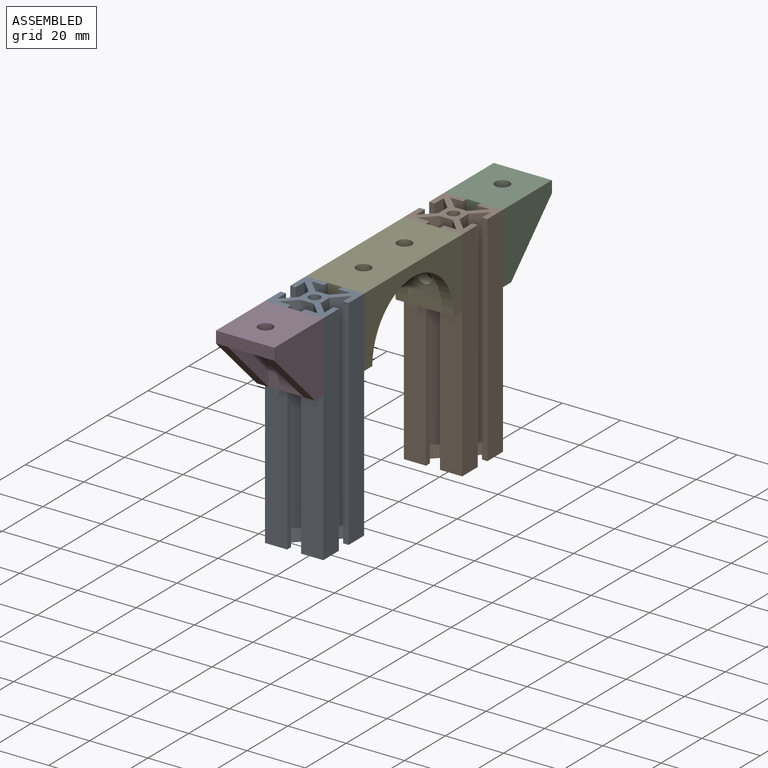
[diagram: assembled view]
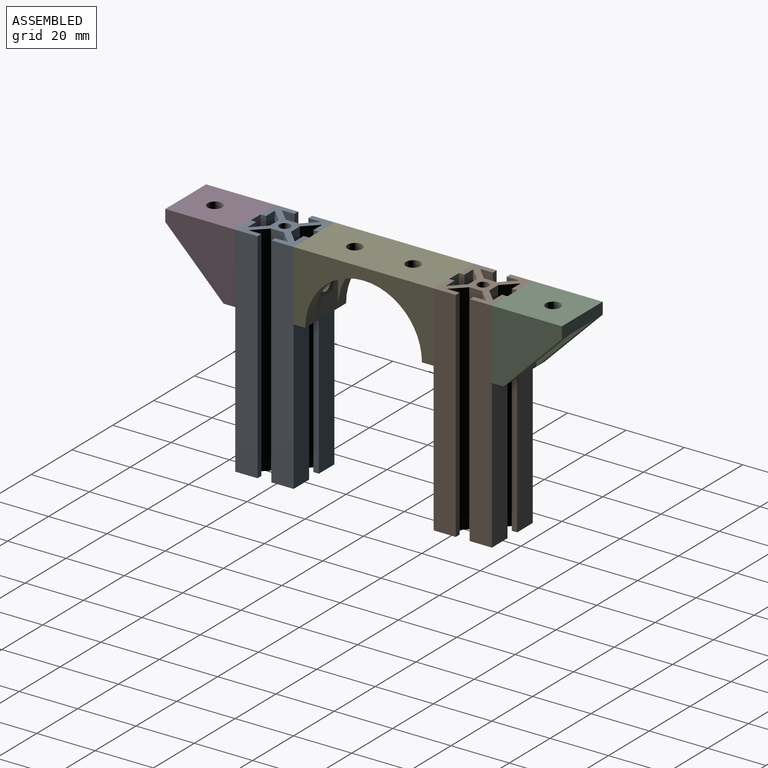
[diagram: assembled view, second angle]
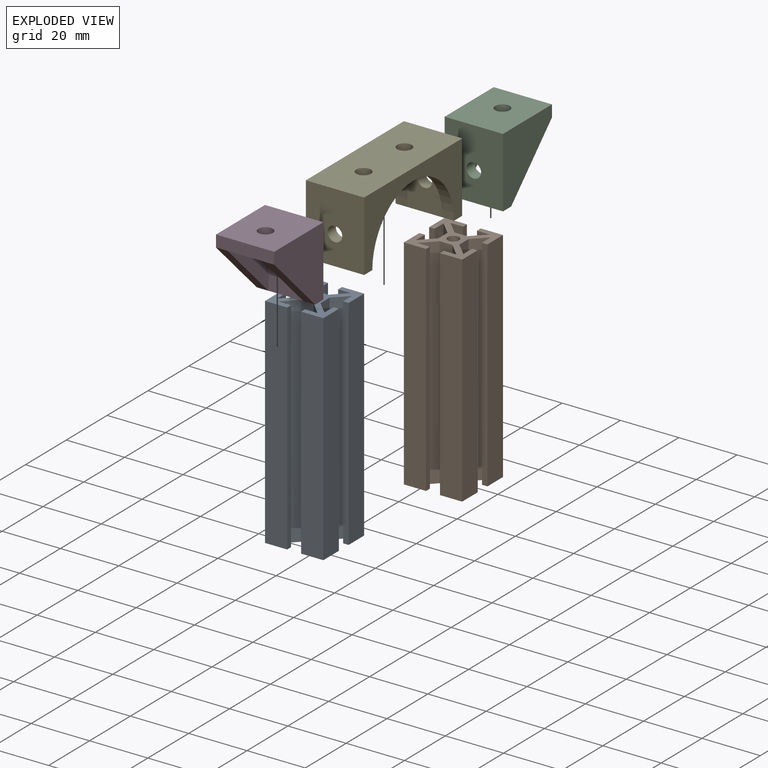
[diagram: exploded view]
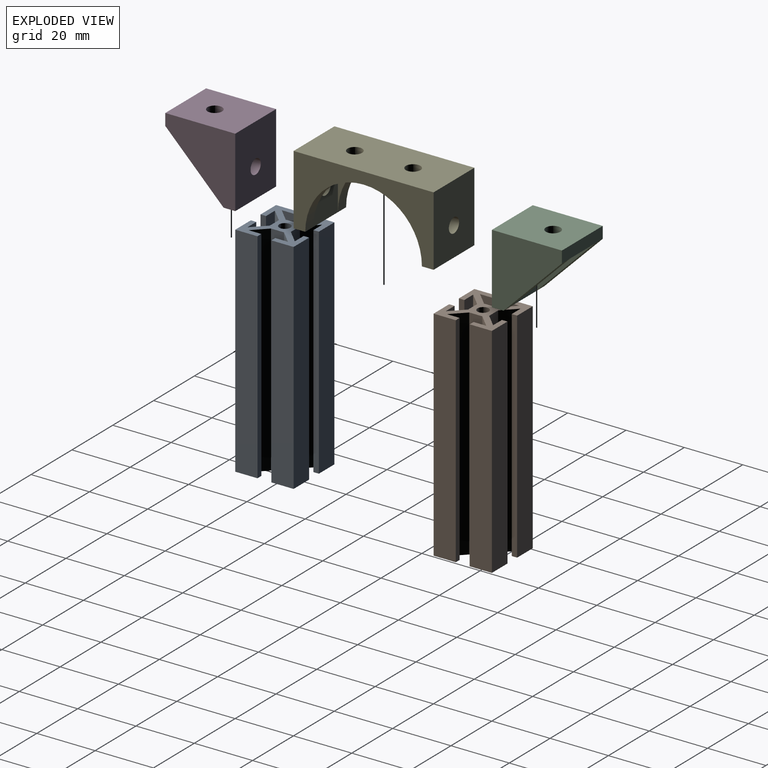
[diagram: exploded view, second angle]
ASSEMBLY  parts=5 mates=4
PART A: 39 faces, bbox 20x20x75 mm
  f0: plane 75x7.62mm, normal (0,1,0), area 571.6mm2, adj f1,f35,f37,f38
  f1: plane 75x7.62mm, normal (-1,0,0), area 571.2mm2, adj f0,f2,f37,f38
  f2: plane 75x1.89mm, normal (0,-1,0), area 141.8mm2, adj f1,f3,f37,f38
  f3: plane 75x4.35mm, normal (1,0,0), area 326.5mm2, adj f2,f4,f37,f38
  f4: plane 75x4.5mm, normal (-0.71,-0.71,0), area 477.3mm2, adj f3,f5,f37,f38
  f5: plane 75x4.48mm, normal (-1,0,0), area 335.7mm2, adj f4,f6,f37,f38
  f6: plane 75x4.5mm, normal (-0.71,0.71,0), area 477.3mm2, adj f5,f7,f37,f38
  f7: plane 75x4.35mm, normal (1,0,0), area 326.5mm2, adj f6,f8,f37,f38
  f8: plane 75x1.89mm, normal (0,1,0), area 141.8mm2, adj f7,f9,f37,f38
  f9: plane 75x7.62mm, normal (-1,0,0), area 571.2mm2, adj f8,f10,f37,f38
  f10: plane 75x7.62mm, normal (0,-1,0), area 571.2mm2, adj f9,f11,f37,f38
  f11: plane 75x1.87mm, normal (1,0,0), area 140.4mm2, adj f10,f12,f37,f38
  f12: plane 75x4.34mm, normal (0,1,0), area 325.6mm2, adj f11,f13,f37,f38
  f13: plane 75x4.52mm, normal (0.71,-0.71,0), area 479.2mm2, adj f12,f14,f37,f38
  f14: plane 75x4.41mm, normal (0,-1,0), area 330.6mm2, adj f13,f15,f37,f38
  f15: plane 75x4.52mm, normal (-0.71,-0.71,0), area 479.2mm2, adj f14,f16,f37,f38
  f16: plane 75x4.34mm, normal (0,1,0), area 325.6mm2, adj f15,f17,f37,f38
  f17: plane 75x1.87mm, normal (-1,0,0), area 140.4mm2, adj f16,f18,f37,f38
  f18: plane 75x7.62mm, normal (0,-1,0), area 571.6mm2, adj f17,f19,f37,f38
  f19: plane 75x7.62mm, normal (1,0,0), area 571.2mm2, adj f18,f20,f37,f38
  f20: plane 75x1.89mm, normal (0,1,0), area 141.8mm2, adj f19,f21,f37,f38
  f21: plane 75x4.35mm, normal (-1,0,0), area 326.5mm2, adj f20,f22,f37,f38
  f22: plane 75x4.5mm, normal (0.71,0.71,0), area 477.3mm2, adj f21,f23,f37,f38
  f23: plane 75x4.48mm, normal (1,0,0), area 335.7mm2, adj f22,f24,f37,f38
  f24: plane 75x4.5mm, normal (0.71,-0.71,0), area 477.3mm2, adj f23,f25,f37,f38
  f25: plane 75x4.35mm, normal (-1,0,0), area 326.5mm2, adj f24,f26,f37,f38
  f26: plane 75x1.89mm, normal (0,-1,0), area 141.8mm2, adj f25,f27,f37,f38
  f27: plane 75x7.62mm, normal (1,0,0), area 571.2mm2, adj f26,f28,f37,f38
  f28: plane 75x7.62mm, normal (0,1,0), area 571.2mm2, adj f27,f29,f37,f38
  f29: plane 75x1.87mm, normal (-1,0,0), area 140.4mm2, adj f28,f30,f37,f38
  f30: plane 75x4.34mm, normal (0,-1,0), area 325.6mm2, adj f29,f31,f37,f38
  f31: plane 75x4.52mm, normal (-0.71,0.71,0), area 479.2mm2, adj f30,f32,f37,f38
  f32: plane 75x4.41mm, normal (0,1,0), area 330.6mm2, adj f31,f33,f37,f38
  f33: plane 75x4.52mm, normal (0.71,0.71,0), area 479.2mm2, adj f32,f34,f37,f38
  f34: plane 75x4.34mm, normal (0,-1,0), area 325.6mm2, adj f33,f35,f37,f38
  f35: plane 75x1.87mm, normal (1,0,0), area 140.4mm2, adj f0,f34,f37,f38
  f36: cylinder r=1.93mm len=75mm, axis (0,0,-1), area 909.7mm2, adj f37,f38
  f37: plane 20x20mm, normal (0,0,1), area 191mm2, adj f0,f1,f2,f3,f4,f5,f6,f7
  f38: plane 20x20mm, normal (0,0,-1), area 191mm2, adj f0,f1,f2,f3,f4,f5,f6,f7
PART B: same geometry as A
PART C: 14 faces, bbox 20x24x24 mm
  f0: plane 20x20mm, normal (1,0,0), area 200mm2, adj f3,f5,f8
  f1: plane 20x20mm, normal (-1,0,0), area 200mm2, adj f2,f5,f8
  f2: plane 20x20mm, normal (0,-0.71,-0.71), area 113.1mm2, adj f1,f6,f9,f12
  f3: plane 20x20mm, normal (0,-0.71,-0.71), area 113.1mm2, adj f0,f6,f7,f12
  f4: cylinder r=2.5mm len=5mm, axis (0,-1,0), area 62.8mm2, adj f5,f13
  f5: plane 20x12mm, normal (0,-1,0), area 220.4mm2, adj f0,f1,f4,f8,f12
  f6: plane 20x4mm, normal (0,-1,0), area 80mm2, adj f2,f3,f7,f8,f9,f11
  f7: plane 24x24mm, normal (-1,0,0), area 376mm2, adj f3,f6,f11,f12,f13
  f8: plane 20x12mm, normal (0,0,-1), area 220.4mm2, adj f0,f1,f5,f6,f10
  f9: plane 24x24mm, normal (1,0,0), area 376mm2, adj f2,f6,f11,f12,f13
  f10: cylinder r=2.5mm len=5mm, axis (0,0,-1), area 62.8mm2, adj f8,f11
  f11: plane 24x20mm, normal (0,0,1), area 460.4mm2, adj f6,f7,f9,f10,f13
  f12: plane 20x4mm, normal (0,0,-1), area 80mm2, adj f2,f3,f5,f7,f9,f13
  f13: plane 24x20mm, normal (0,1,0), area 460.4mm2, adj f4,f7,f9,f11,f12
PART D: same geometry as C
PART E: 20 faces, bbox 20x48x24 mm
  f0: plane 20x4mm, normal (0,0,-1), area 80mm2, adj f3,f6,f14,f17,f18,f19
  f1: plane 20x20mm, normal (1,0,0), area 85.8mm2, adj f4,f17,f19
  f2: plane 20x20mm, normal (-1,0,0), area 85.8mm2, adj f4,f17,f18
  f3: plane 48x24mm, normal (-1,0,0), area 523.7mm2, adj f0,f5,f8,f9,f14,f19
  f4: plane 40x12mm, normal (0,0,-1), area 440.7mm2, adj f1,f2,f7,f10,f11,f13,f15,f17
  f5: plane 24x20mm, normal (0,1,0), area 460.4mm2, adj f3,f6,f8,f9,f12
  f6: plane 48x24mm, normal (1,0,0), area 523.7mm2, adj f0,f5,f8,f9,f14,f18
  f7: cylinder r=2.5mm len=5mm, axis (0,0,1), area 62.8mm2, adj f4,f8
  f8: plane 48x20mm, normal (0,0,1), area 920.7mm2, adj f3,f5,f6,f7,f14,f15
  f9: plane 20x4mm, normal (0,0,-1), area 80mm2, adj f3,f5,f6,f13,f18,f19
  f10: plane 20x20mm, normal (1,0,0), area 85.8mm2, adj f4,f13,f19
  f11: plane 20x20mm, normal (-1,0,0), area 85.8mm2, adj f4,f13,f18
  f12: cylinder r=2.5mm len=5mm, axis (0,1,0), area 62.8mm2, adj f5,f13
  f13: plane 20x12mm, normal (0,-1,0), area 220.4mm2, adj f4,f9,f10,f11,f12
  f14: plane 24x20mm, normal (0,-1,0), area 460.4mm2, adj f0,f3,f6,f8,f16
  f15: cylinder r=2.5mm len=5mm, axis (0,0,1), area 62.8mm2, adj f4,f8
  f16: cylinder r=2.5mm len=5mm, axis (0,-1,0), area 62.8mm2, adj f14,f17
  f17: plane 20x12mm, normal (0,1,0), area 220.4mm2, adj f0,f1,f2,f4,f16
  f18: cylinder r=20mm len=40mm, axis (-1,0,0), area 251.3mm2, adj f0,f2,f6,f9,f11
  f19: cylinder r=20mm len=40mm, axis (-1,0,0), area 251.3mm2, adj f0,f1,f3,f9,f10
PLACE A t=(-35.52,-43.75,-73.06)mm
PLACE B t=(-35.52,24.25,-73.06)mm
PLACE C rot(axis=(0,0,-1),180deg) t=(-19.71,51.25,-2.06)mm
PLACE D t=(-19.71,-60.75,-2.06)mm
PLACE E t=(-19.71,7.25,-42.06)mm
MATE fastened D.f11 <-> A.f37  axis (0,0,-1) through (-9.71,-48.75,1.94)mm
MATE fastened C.f11 <-> B.f37  axis (0,0,-1) through (-29.71,39.25,1.94)mm
MATE fastened A.f37 <-> E.f8  axis (0,0,-1) through (-29.71,-28.75,1.94)mm
MATE fastened B.f37 <-> E.f8  axis (0,0,-1) through (-9.71,19.25,1.94)mm
